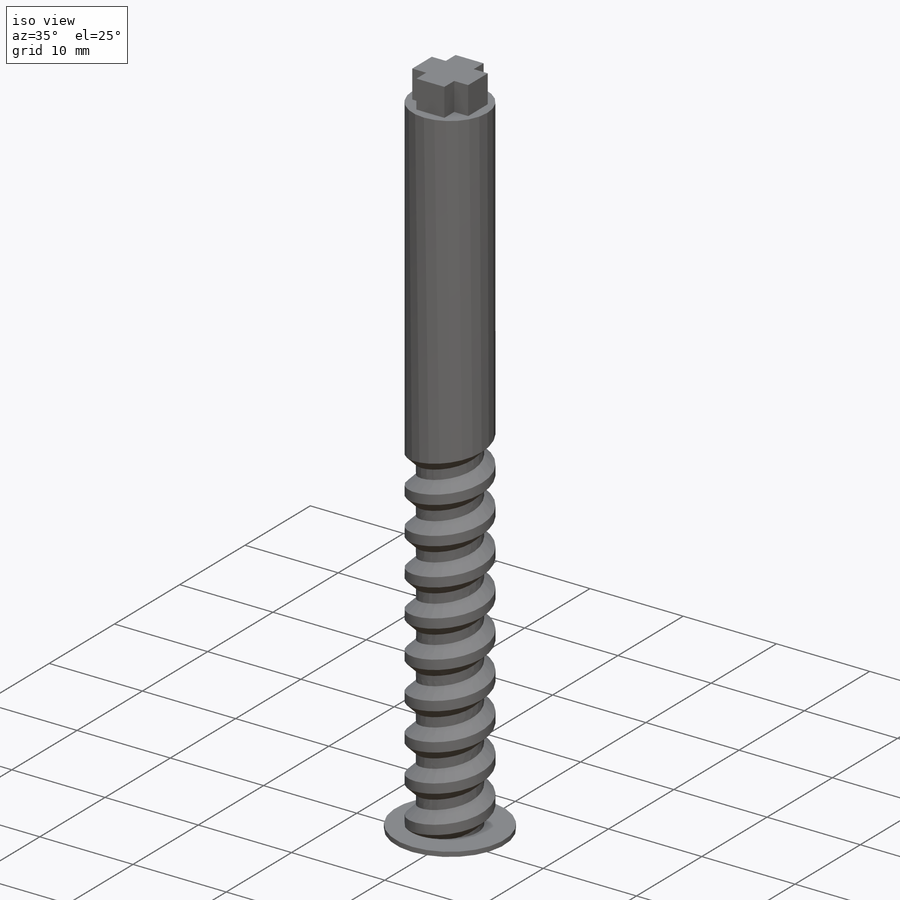
[diagram: iso view]
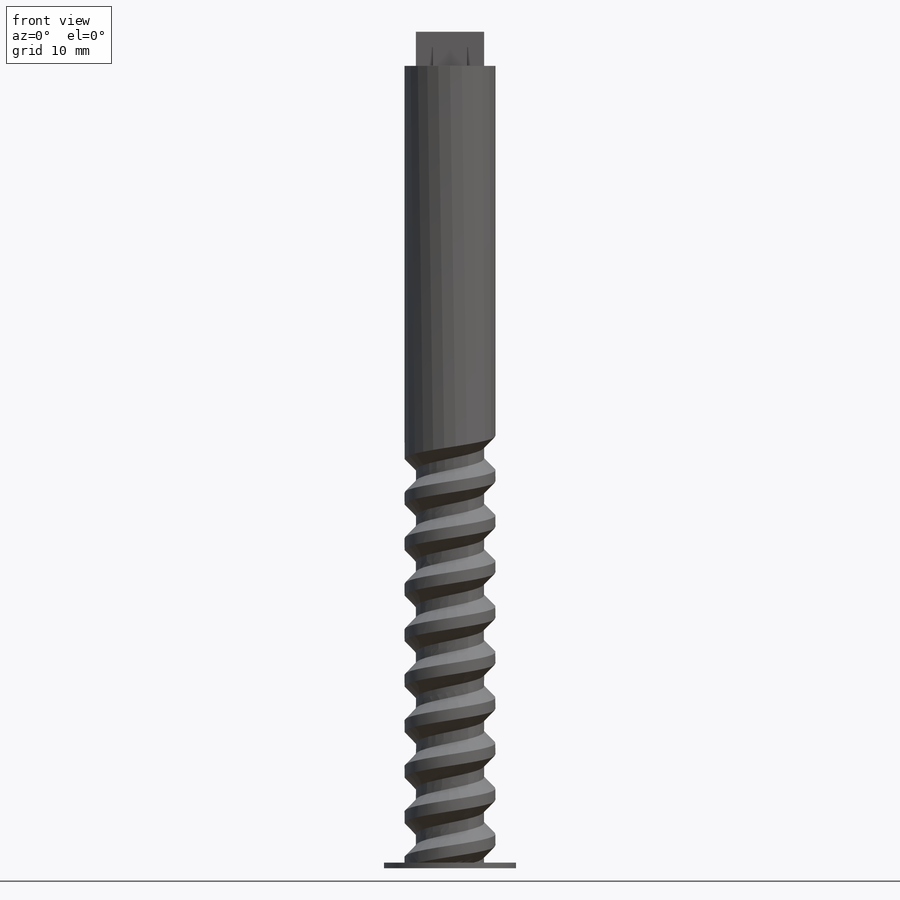
[diagram: front view]
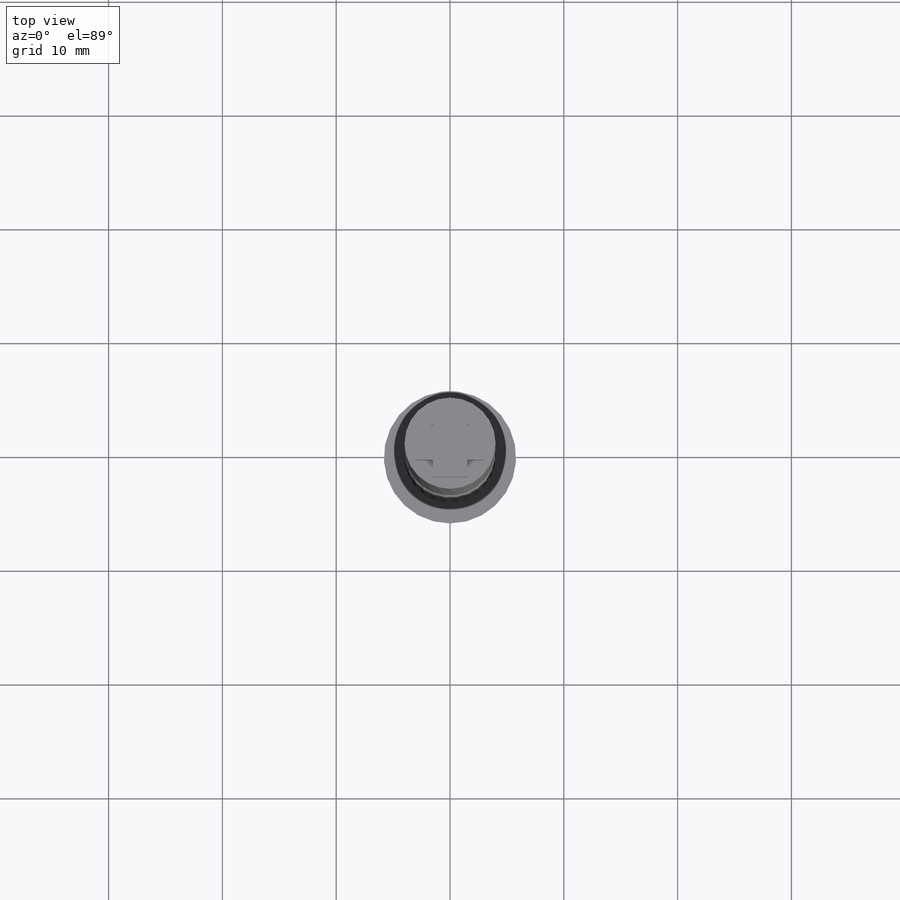
[diagram: top view]
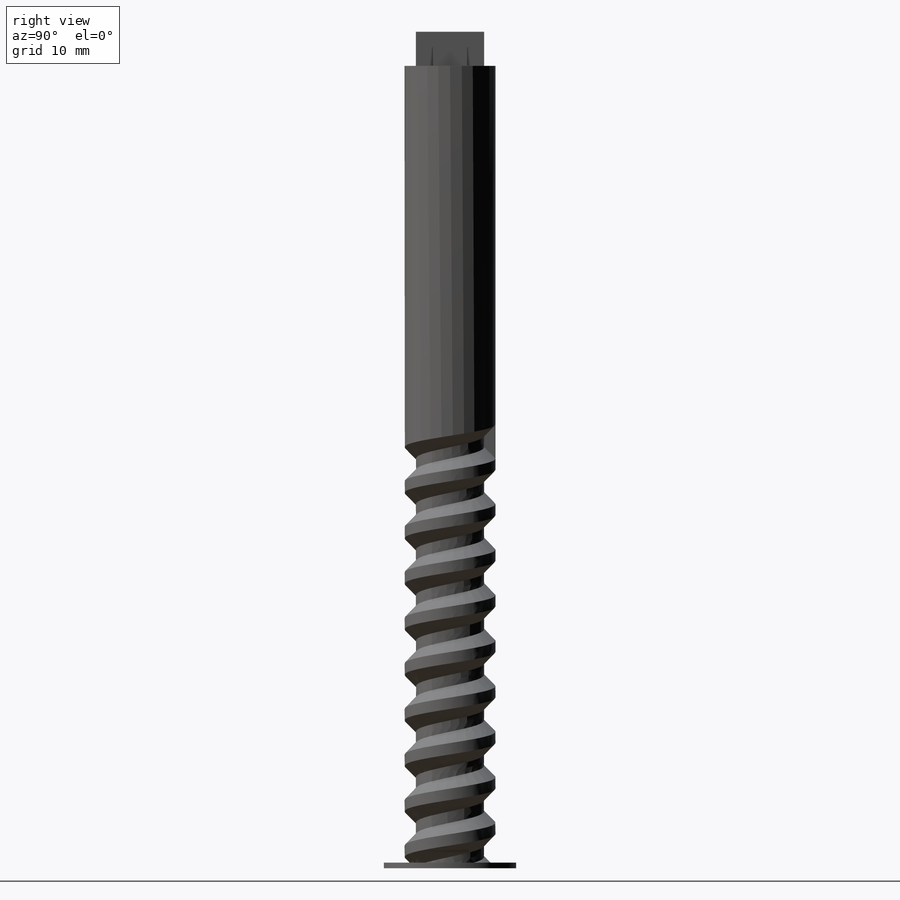
[diagram: right view]
SOLIDWORKS PART (.sldprt)
format: sldprt  version: not decoded by parser v0  size: 699,904 bytes
history: native  units: mm
features: sketch x24, extrude x10, cut_extrude x5, sweep x4, plane x3, material x1, helix x1 (+9 scaffold rows collapsed)
feature tree (57):
  scaffold x9  (default folders/planes/origin — collapsed)
  material  "材质 <未指定>"
  plane  "前视基准面"
  plane  "上视基准面"
  plane  "右视基准面"
  sketch  "草图1"  dims[D1=8.0mm]
  extrude  "凸台-拉伸1"  Depth=70mm
  sketch  "草图2"  dims[c1.D1=6.0mm c1.D2=6.0mm c2.D1=6.0mm c2.D2=3.0mm]
  extrude  "凸台-拉伸2"  Depth=3mm
  sketch  "草图3"  dims[D1=6.0mm D2=3.0mm]
  extrude  "凸台-拉伸3"  Depth=3mm
  sketch  "草图4"  dims[D1=4.0mm]
  cut_extrude  "切除-拉伸2"  Depth=60mm
  sketch  "草图6"  dims[c1.D1=1.0mm c1.D2=1.0mm c1.D3=~1.129774mm c2.D3=45.0deg]
  sketch  "草图10"
  helix  "螺旋线/涡状线3"  Pitch=60mm
  sweep  "切除-扫描24"
  sketch  "草图11"  dims[D1=6.0mm]
  extrude  "凸台-拉伸4"  Depth=20mm
  sketch  "草图12"
  cut_extrude  "切除-拉伸3"  Depth=5mm
  sketch  "草图14"  dims[D1=3.0mm]
  sketch  "草图15"
  extrude  "凸台-拉伸5"  Depth=5mm
  sketch  "草图16"
  sketch  "草图17"  dims[c1.D1=1.0mm c1.D2=1.0mm c1.D3=~1.546039mm c2.D3=45.0deg c2.D4=6.0mm c3.D4=45.0deg c3.螺旋线/涡状线5=0.0 c3.D3=20.0mm c4.D4=3.0mm c4.D5=~6666.666667mm c4.D7=0.0deg]
  sweep  "切除-扫描26"
  sketch  "草图18"
  extrude  "凸台-拉伸6"  Depth=60mm
  sketch  "草图19"
  extrude  "凸台-拉伸7"  Depth=60mm
  sketch  "草图22"
  cut_extrude  "切除-拉伸4"  Depth=100mm
  sketch  "草图23"  dims[c1.D1=1.5mm c1.D2=1.5mm c1.D3=~3.098202mm c2.D3=45.0deg]
  sketch  "草图24"  dims[螺旋线/涡状线6=0.0 D3=20.0mm D4=4.0mm D5=5000.0mm D7=0.0deg]
  sweep  "切除-扫描28"
  sketch  "草图25"  dims[D1=5.5mm]
  cut_extrude  "切除-拉伸5"  Depth=50mm
  sketch  "草图26"  dims[D1=10.0mm]
  extrude  "凸台-拉伸8"  Depth=1mm
  sketch  "草图27"
  cut_extrude  "切除-拉伸6"  Depth=1mm
  sketch  "草图28"
  extrude  "凸台-拉伸9"  Depth=70mm
  sketch  "草图30"  dims[c1.D1=1.0mm c1.D2=1.0mm c1.D3=1.0mm c1.D4=0.5mm c1.D5=~1.413667mm c2.D5=45.0deg c2.D6=1.0mm]
  sketch  "草图31"  dims[螺旋线/涡状线7=0.0 D3=40.0mm D4=4.0mm D5=10000.0mm D7=0.0deg]
  sweep  "切除-扫描29"
  sketch  "草图32"
  extrude  "凸台-拉伸10"  Depth=0.5mm
decode coverage: 30 of 44 modeling features carry decoded parameters
note: ~ marks probable driven/reference dimensions
summary: profile_refs inferred from adjacent sketches, not decoded
note: suppression state not decoded; provenance and decode notes live in map.json
